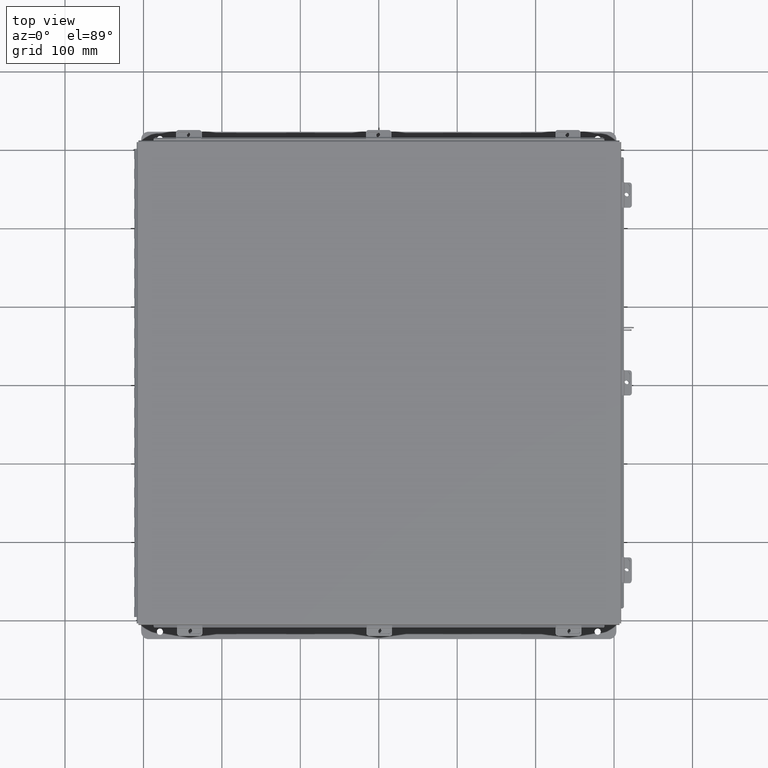
[diagram: clean part render]
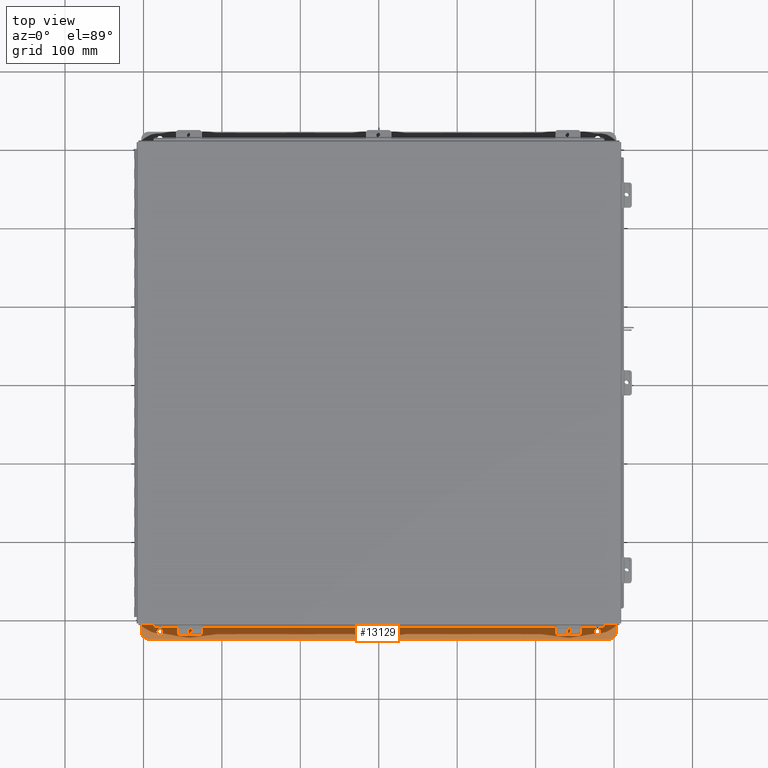
[diagram: same view with one face highlighted and labeled with its STEP entity id]
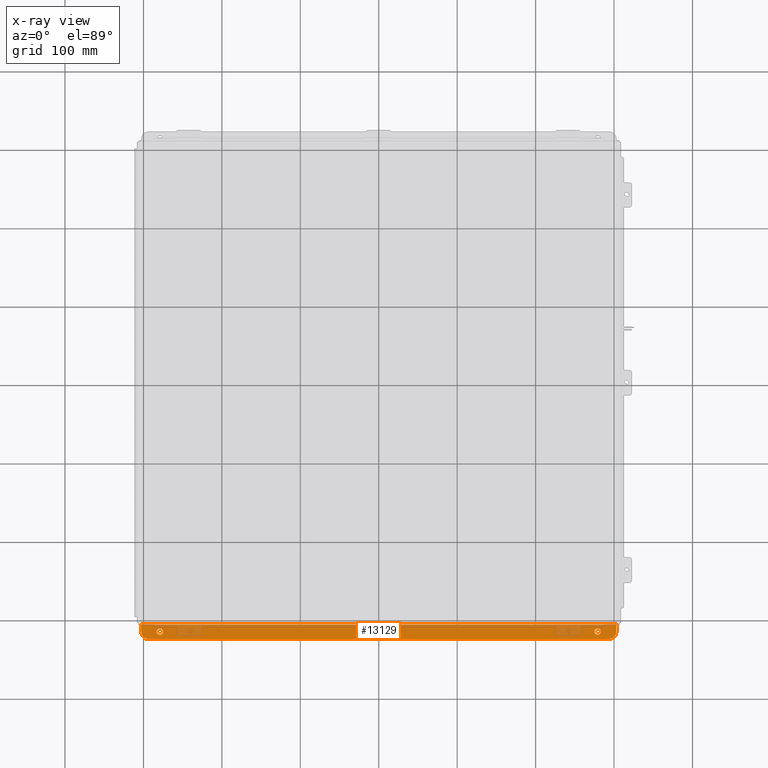
[diagram: x-ray of the same camera — body ghosted, the highlighted face saturated]
A machine part, top view. The second image highlights one B-rep face of the part: STEP entity #13129.
The next image is the same camera in x-ray: the body ghosted, the highlighted face saturated — about 29% of this face is hidden behind the body in this view.
In plain terms, the highlighted planar face has unit normal (0, -0, 1).
Its self-contained STEP definition (entity closure, byte-faithful):
#182 = DIRECTION ( 'NONE',  ( 1.000000000000000000, 4.910036603141682400E-031, -0.0000000000000000000 ) ) ;
#411 = CARTESIAN_POINT ( 'NONE',  ( -11.92530000000001600, 0.01299999999999792100, -4.112299999999995000 ) ) ;
#604 = ORIENTED_EDGE ( 'NONE', *, *, #7047, .T. ) ;
#927 = CARTESIAN_POINT ( 'NONE',  ( -11.92530000000000000, 0.7377999999999989000, -4.112299999999998500 ) ) ;
#1163 = EDGE_CURVE ( 'NONE', #12331, #2434, #9818, .T. ) ;
#1298 = EDGE_CURVE ( 'NONE', #24552, #15112, #24708, .T. ) ;
#1631 = EDGE_LOOP ( 'NONE', ( #4527, #15276 ) ) ;
#2074 = CARTESIAN_POINT ( 'NONE',  ( 11.55030000000000000, 0.7378000000000163300, -4.112299999999998500 ) ) ;
#2213 = ORIENTED_EDGE ( 'NONE', *, *, #20595, .F. ) ;
#2434 = VERTEX_POINT ( 'NONE', #2074 ) ;
#2478 = DIRECTION ( 'NONE',  ( 4.919856193148104900E-031, 1.000000000000000000, -3.702694488566362300E-015 ) ) ;
#2792 = CARTESIAN_POINT ( 'NONE',  ( 11.92530000000000000, 0.7378000000000163300, -4.112300000000002100 ) ) ;
#2806 = ORIENTED_EDGE ( 'NONE', *, *, #21607, .T. ) ;
#3211 = CARTESIAN_POINT ( 'NONE',  ( -10.98779999999998000, 0.2068000000000007900, -4.112300000000000300 ) ) ;
#3364 = ORIENTED_EDGE ( 'NONE', *, *, #20623, .T. ) ;
#3938 = ORIENTED_EDGE ( 'NONE', *, *, #1298, .T. ) ;
#4527 = ORIENTED_EDGE ( 'NONE', *, *, #15415, .T. ) ;
#4817 = CARTESIAN_POINT ( 'NONE',  ( 11.92529999999998400, 0.01300000000001759100, -4.112299999999999400 ) ) ;
#5877 = CARTESIAN_POINT ( 'NONE',  ( -10.98779999999998000, 0.5188000000000009300, -4.112300000000001200 ) ) ;
#5997 = VERTEX_POINT ( 'NONE', #411 ) ;
#6057 = CIRCLE ( 'NONE', #6621, 0.3750000000000000600 ) ;
#6124 = DIRECTION ( 'NONE',  ( -4.919856193148104900E-031, -1.000000000000000000, 3.702694488566362300E-015 ) ) ;
#6126 = LINE ( 'NONE', #927, #6404 ) ;
#6404 = VECTOR ( 'NONE', #2478, 39.37007874015748100 ) ;
#6563 = EDGE_LOOP ( 'NONE', ( #20297, #2806, #2213, #22083, #22677, #3364 ) ) ;
#6603 = CARTESIAN_POINT ( 'NONE',  ( 11.92529999999998400, 1.748382715945128500E-014, -4.112299999999999400 ) ) ;
#6621 = AXIS2_PLACEMENT_3D ( 'NONE', #22494, #22370, #22215 ) ;
#6745 = DIRECTION ( 'NONE',  ( -4.919856193148104900E-031, -1.000000000000000000, 3.702694488566362300E-015 ) ) ;
#6909 = PLANE ( 'NONE',  #18933 ) ;
#6983 = DIRECTION ( 'NONE',  ( 0.0000000000000000000, -1.000000000000000000, 4.370956789862820400E-015 ) ) ;
#7026 = DIRECTION ( 'NONE',  ( 0.0000000000000000000, 3.702694488566362300E-015, 1.000000000000000000 ) ) ;
#7047 = EDGE_CURVE ( 'NONE', #15112, #24552, #8080, .T. ) ;
#7059 = CARTESIAN_POINT ( 'NONE',  ( -11.55029999999999600, 0.3628000000000008400, -4.112299999999996700 ) ) ;
#7074 = CARTESIAN_POINT ( 'NONE',  ( -2.035385365534024800E-024, -1.311287036958846300E-014, -4.112299999999999400 ) ) ;
#7514 = DIRECTION ( 'NONE',  ( -1.000000000000000000, -2.290800226127906500E-017, 0.0000000000000000000 ) ) ;
#7549 = DIRECTION ( 'NONE',  ( 0.0000000000000000000, -1.000000000000000000, 3.502369222646490200E-015 ) ) ;
#7776 = CARTESIAN_POINT ( 'NONE',  ( 11.92529999999998400, 0.01300000000001759100, -4.112299999999999400 ) ) ;
#7926 = AXIS2_PLACEMENT_3D ( 'NONE', #21231, #21051, #20859 ) ;
#8080 = CIRCLE ( 'NONE', #10369, 0.1560000000000000600 ) ;
#8298 = FACE_OUTER_BOUND ( 'NONE', #6563, .T. ) ;
#8346 = FACE_BOUND ( 'NONE', #16873, .T. ) ;
#8370 = FACE_BOUND ( 'NONE', #1631, .T. ) ;
#8491 = DIRECTION ( 'NONE',  ( 0.0000000000000000000, 3.702694488566362300E-015, 1.000000000000000000 ) ) ;
#8526 = CARTESIAN_POINT ( 'NONE',  ( -10.98779999999999800, 0.3628000000000008400, -4.112300000000001200 ) ) ;
#9308 = VERTEX_POINT ( 'NONE', #23461 ) ;
#9818 = LINE ( 'NONE', #2792, #10713 ) ;
#10369 = AXIS2_PLACEMENT_3D ( 'NONE', #17700, #24414, #7549 ) ;
#10713 = VECTOR ( 'NONE', #182, 39.37007874015748100 ) ;
#12331 = VERTEX_POINT ( 'NONE', #14636 ) ;
#12691 = CARTESIAN_POINT ( 'NONE',  ( 11.92530000000000000, 0.3628000000000161700, -4.112299999999996700 ) ) ;
#12748 = VECTOR ( 'NONE', #6124, 39.37007874015748100 ) ;
#12827 = LINE ( 'NONE', #6603, #12748 ) ;
#13069 = CARTESIAN_POINT ( 'NONE',  ( -11.92530000000000000, 0.3628000000000008400, -4.112300000000001200 ) ) ;
#13129 = ADVANCED_FACE ( 'NONE', ( #8346, #8370, #8298 ), #6909, .T. ) ;
#13660 = AXIS2_PLACEMENT_3D ( 'NONE', #17855, #17849, #17827 ) ;
#13935 = DIRECTION ( 'NONE',  ( -0.0000000000000000000, -3.702694488566362300E-015, -1.000000000000000000 ) ) ;
#14636 = CARTESIAN_POINT ( 'NONE',  ( -11.55029999999999600, 0.7377999999999989000, -4.112300000000002100 ) ) ;
#15112 = VERTEX_POINT ( 'NONE', #3211 ) ;
#15276 = ORIENTED_EDGE ( 'NONE', *, *, #23377, .T. ) ;
#15415 = EDGE_CURVE ( 'NONE', #18230, #9308, #18183, .T. ) ;
#15732 = VERTEX_POINT ( 'NONE', #4817 ) ;
#16873 = EDGE_LOOP ( 'NONE', ( #3938, #604 ) ) ;
#17398 = CIRCLE ( 'NONE', #13660, 0.1560000000000000600 ) ;
#17418 = VERTEX_POINT ( 'NONE', #12691 ) ;
#17700 = CARTESIAN_POINT ( 'NONE',  ( -10.98779999999999800, 0.3628000000000008400, -4.112300000000001200 ) ) ;
#17827 = DIRECTION ( 'NONE',  ( 0.0000000000000000000, -1.000000000000000000, 3.502369222646490200E-015 ) ) ;
#17849 = DIRECTION ( 'NONE',  ( -0.0000000000000000000, -3.702694488566362300E-015, -1.000000000000000000 ) ) ;
#17855 = CARTESIAN_POINT ( 'NONE',  ( 10.98780000000000000, 0.3628000000000161700, -4.112299999999996700 ) ) ;
#18183 = CIRCLE ( 'NONE', #7926, 0.1560000000000000600 ) ;
#18215 = CARTESIAN_POINT ( 'NONE',  ( 10.98780000000001800, 0.5188000000000162500, -4.112299999999996700 ) ) ;
#18230 = VERTEX_POINT ( 'NONE', #18215 ) ;
#18933 = AXIS2_PLACEMENT_3D ( 'NONE', #7074, #8491, #6745 ) ;
#19074 = AXIS2_PLACEMENT_3D ( 'NONE', #7059, #7026, #6983 ) ;
#19396 = VERTEX_POINT ( 'NONE', #13069 ) ;
#20297 = ORIENTED_EDGE ( 'NONE', *, *, #1163, .F. ) ;
#20531 = DIRECTION ( 'NONE',  ( 0.0000000000000000000, -1.000000000000000000, 3.502369222646490200E-015 ) ) ;
#20595 = EDGE_CURVE ( 'NONE', #5997, #19396, #6126, .T. ) ;
#20623 = EDGE_CURVE ( 'NONE', #17418, #2434, #6057, .T. ) ;
#20859 = DIRECTION ( 'NONE',  ( 0.0000000000000000000, -1.000000000000000000, 3.502369222646490200E-015 ) ) ;
#21051 = DIRECTION ( 'NONE',  ( -0.0000000000000000000, -3.702694488566362300E-015, -1.000000000000000000 ) ) ;
#21231 = CARTESIAN_POINT ( 'NONE',  ( 10.98780000000000000, 0.3628000000000161700, -4.112299999999996700 ) ) ;
#21567 = EDGE_CURVE ( 'NONE', #15732, #5997, #24281, .T. ) ;
#21607 = EDGE_CURVE ( 'NONE', #12331, #19396, #24072, .T. ) ;
#22083 = ORIENTED_EDGE ( 'NONE', *, *, #21567, .F. ) ;
#22215 = DIRECTION ( 'NONE',  ( 0.0000000000000000000, -1.000000000000000000, 4.370956789862820400E-015 ) ) ;
#22370 = DIRECTION ( 'NONE',  ( 0.0000000000000000000, 3.702694488566362300E-015, 1.000000000000000000 ) ) ;
#22494 = CARTESIAN_POINT ( 'NONE',  ( 11.55030000000000000, 0.3628000000000161700, -4.112300000000001200 ) ) ;
#22677 = ORIENTED_EDGE ( 'NONE', *, *, #24484, .F. ) ;
#23073 = AXIS2_PLACEMENT_3D ( 'NONE', #8526, #13935, #20531 ) ;
#23377 = EDGE_CURVE ( 'NONE', #9308, #18230, #17398, .T. ) ;
#23461 = CARTESIAN_POINT ( 'NONE',  ( 10.98780000000001800, 0.2068000000000160800, -4.112299999999995800 ) ) ;
#24072 = CIRCLE ( 'NONE', #19074, 0.3750000000000000600 ) ;
#24118 = VECTOR ( 'NONE', #7514, 39.37007874015748100 ) ;
#24281 = LINE ( 'NONE', #7776, #24118 ) ;
#24414 = DIRECTION ( 'NONE',  ( -0.0000000000000000000, -3.702694488566362300E-015, -1.000000000000000000 ) ) ;
#24484 = EDGE_CURVE ( 'NONE', #17418, #15732, #12827, .T. ) ;
#24552 = VERTEX_POINT ( 'NONE', #5877 ) ;
#24708 = CIRCLE ( 'NONE', #23073, 0.1560000000000000600 ) ;